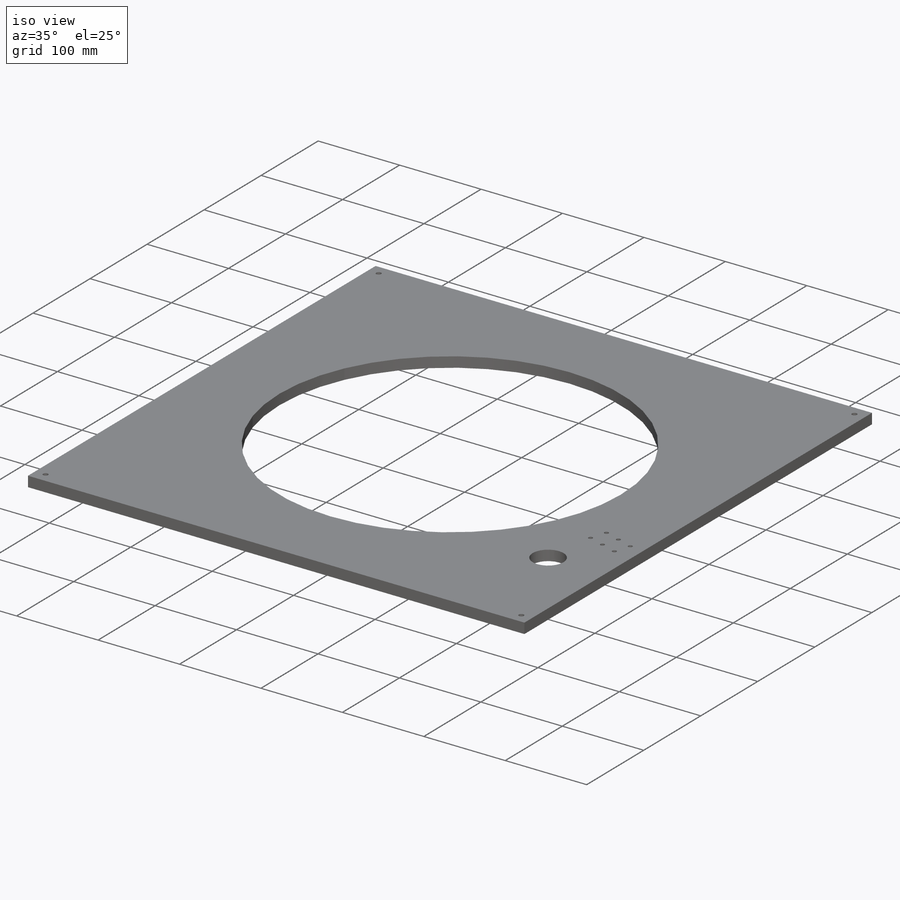
[diagram: iso view]
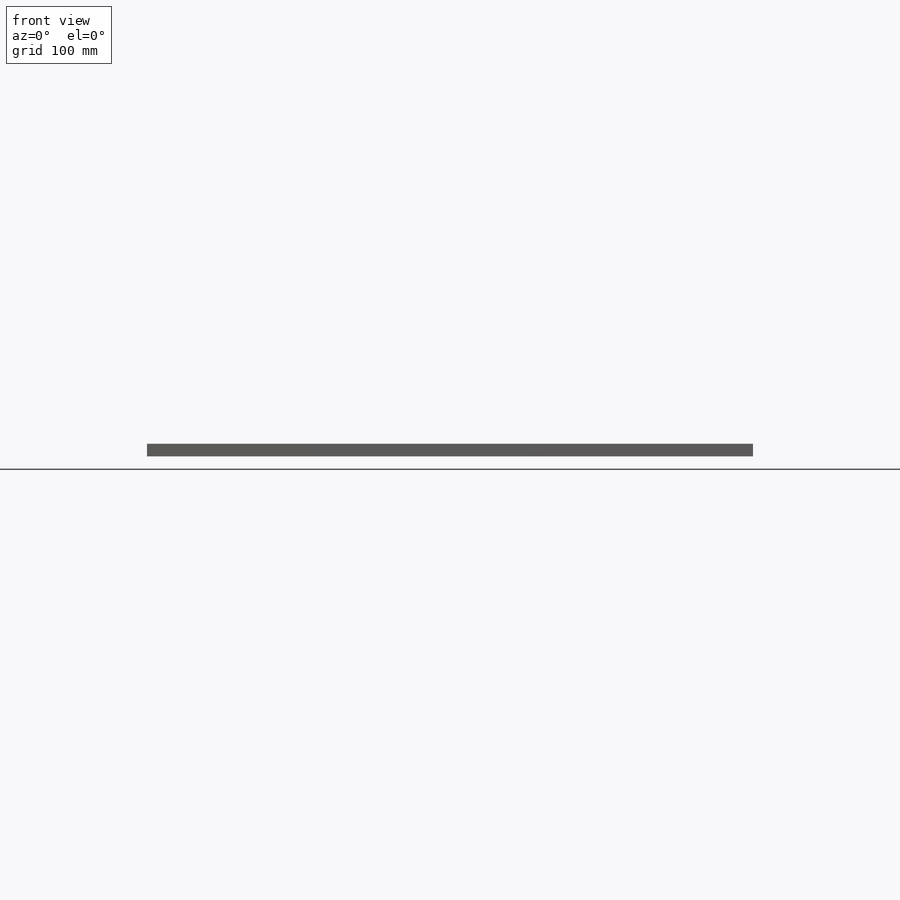
[diagram: front view]
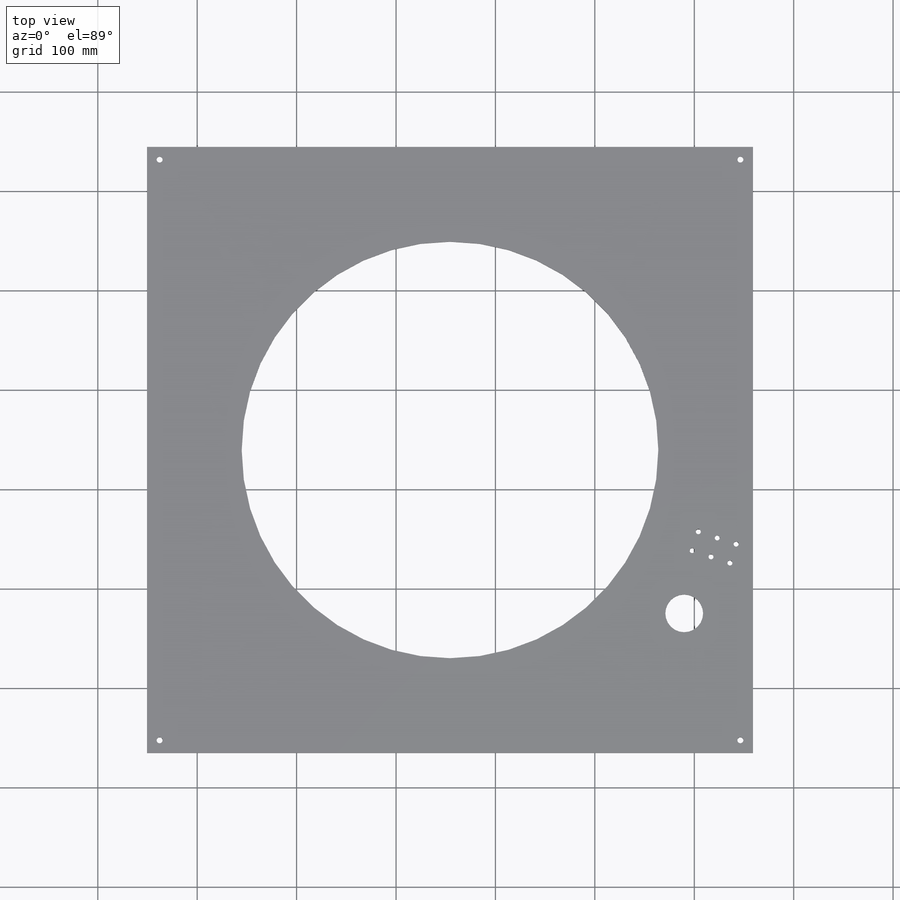
[diagram: top view]
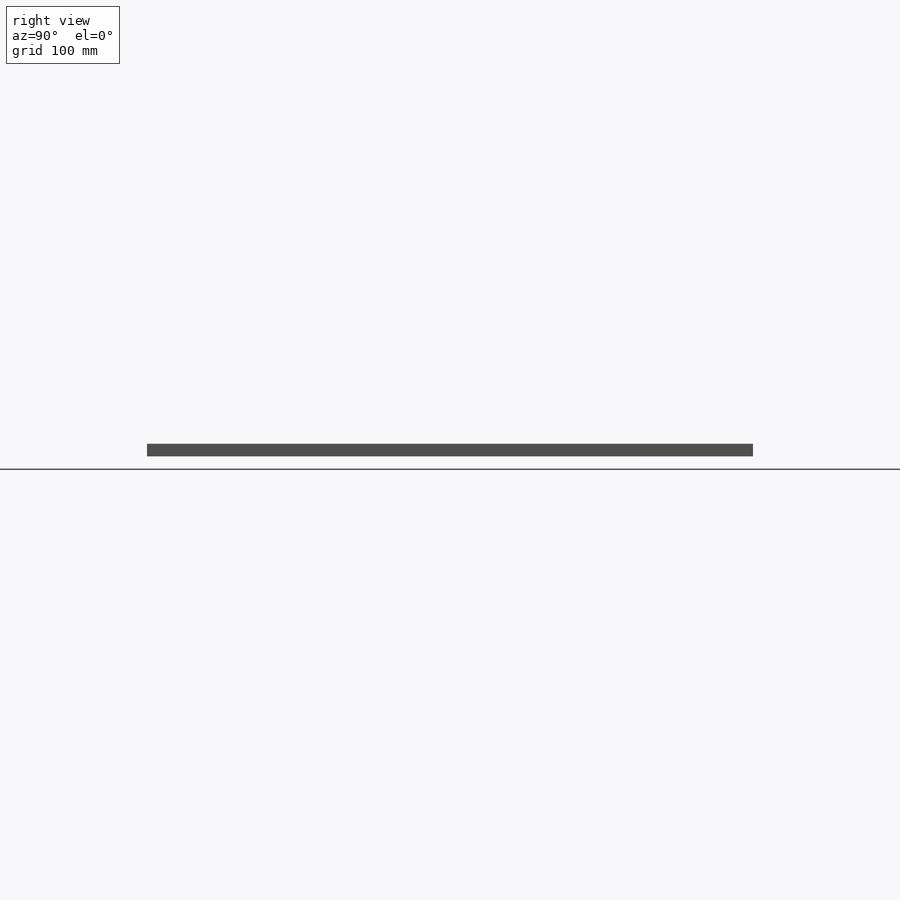
[diagram: right view]
SOLIDWORKS PART (.sldprt)
format: sldprt  version: not decoded by parser v0  size: 233,984 bytes
history: native  units: mm
features: sketch x5, cut_extrude x4, material x1, extrude x1 (+16 scaffold rows collapsed)
feature tree (27):
  scaffold x16  (default folders/planes/origin — collapsed)
  material  "Pine"
  sketch  "Sketch1"  dims[D1=609.6mm D2=609.6mm]
  extrude  "Boss-Extrude1"  Depth=12.7mm
  sketch  "Sketch2"  dims[c1.D1=419.1mm c1.D2=419.1mm c1.D3=419.1mm c2.D2=304.8mm c2.D3=304.8mm]
  cut_extrude  "Cut-Extrude1"  [1 undecoded]
  sketch  "Sketch3"  dims[D1=38.0mm D2=140.4mm D3=69.2mm]
  cut_extrude  "Cut-Extrude2"  [1 undecoded]
  sketch  "Sketch4"  dims[c1.D1=~16.786772mm c1.D5=5.0mm c1.D6=5.0mm c1.D7=5.0mm c1.D8=10.0mm c1.D9=10.0mm c1.D10=10.0mm c2.D1=210.0mm c2.D2=17.0mm c2.D3=20.0mm c2.D4=20.0mm c2.D11=20.0mm c2.D12=20.0mm c3.D11=55.0mm c3.D3=220.0mm c3.D4=215.0mm c3.D12=20.0mm c3.D13=~37.31491mm c4.D12=35.0mm c4.D13=~0.508987mm c4.D4=0.0001mm c5.D12=20.0mm c5.D13=~19.293765mm c5.D4=20.0mm c6.D13=40.0mm c6.D4=20.0mm c6.D3=55.0mm c6.D11=10.0mm c6.D14=10.0mm c6.D15=10.0mm]
  cut_extrude  "Cut-Extrude3"  [1 undecoded]
  sketch  "Sketch5"  dims[c1.D1=~11.013036mm c1.D2=~11.013036mm c1.D3=~15.751541mm c1.D4=~15.751541mm c1.D5=~15.643955mm c1.D7=~14.456691mm c1.D9=6.0mm c1.D10=6.0mm c1.D11=6.0mm c1.D12=6.0mm c2.D1=12.7mm c2.D2=12.7mm c2.D3=12.7mm c2.D4=12.7mm c2.D5=12.7mm c2.D6=12.7mm c2.D7=12.7mm c2.D8=12.7mm]
  cut_extrude  "Cut-Extrude4"  [1 undecoded]
decode coverage: 6 of 10 modeling features carry decoded parameters
note: ~ marks probable driven/reference dimensions
note: 4 parameter values undecoded
summary: no parameter record found for 4 features
note: suppression state not decoded; provenance and decode notes live in map.json
